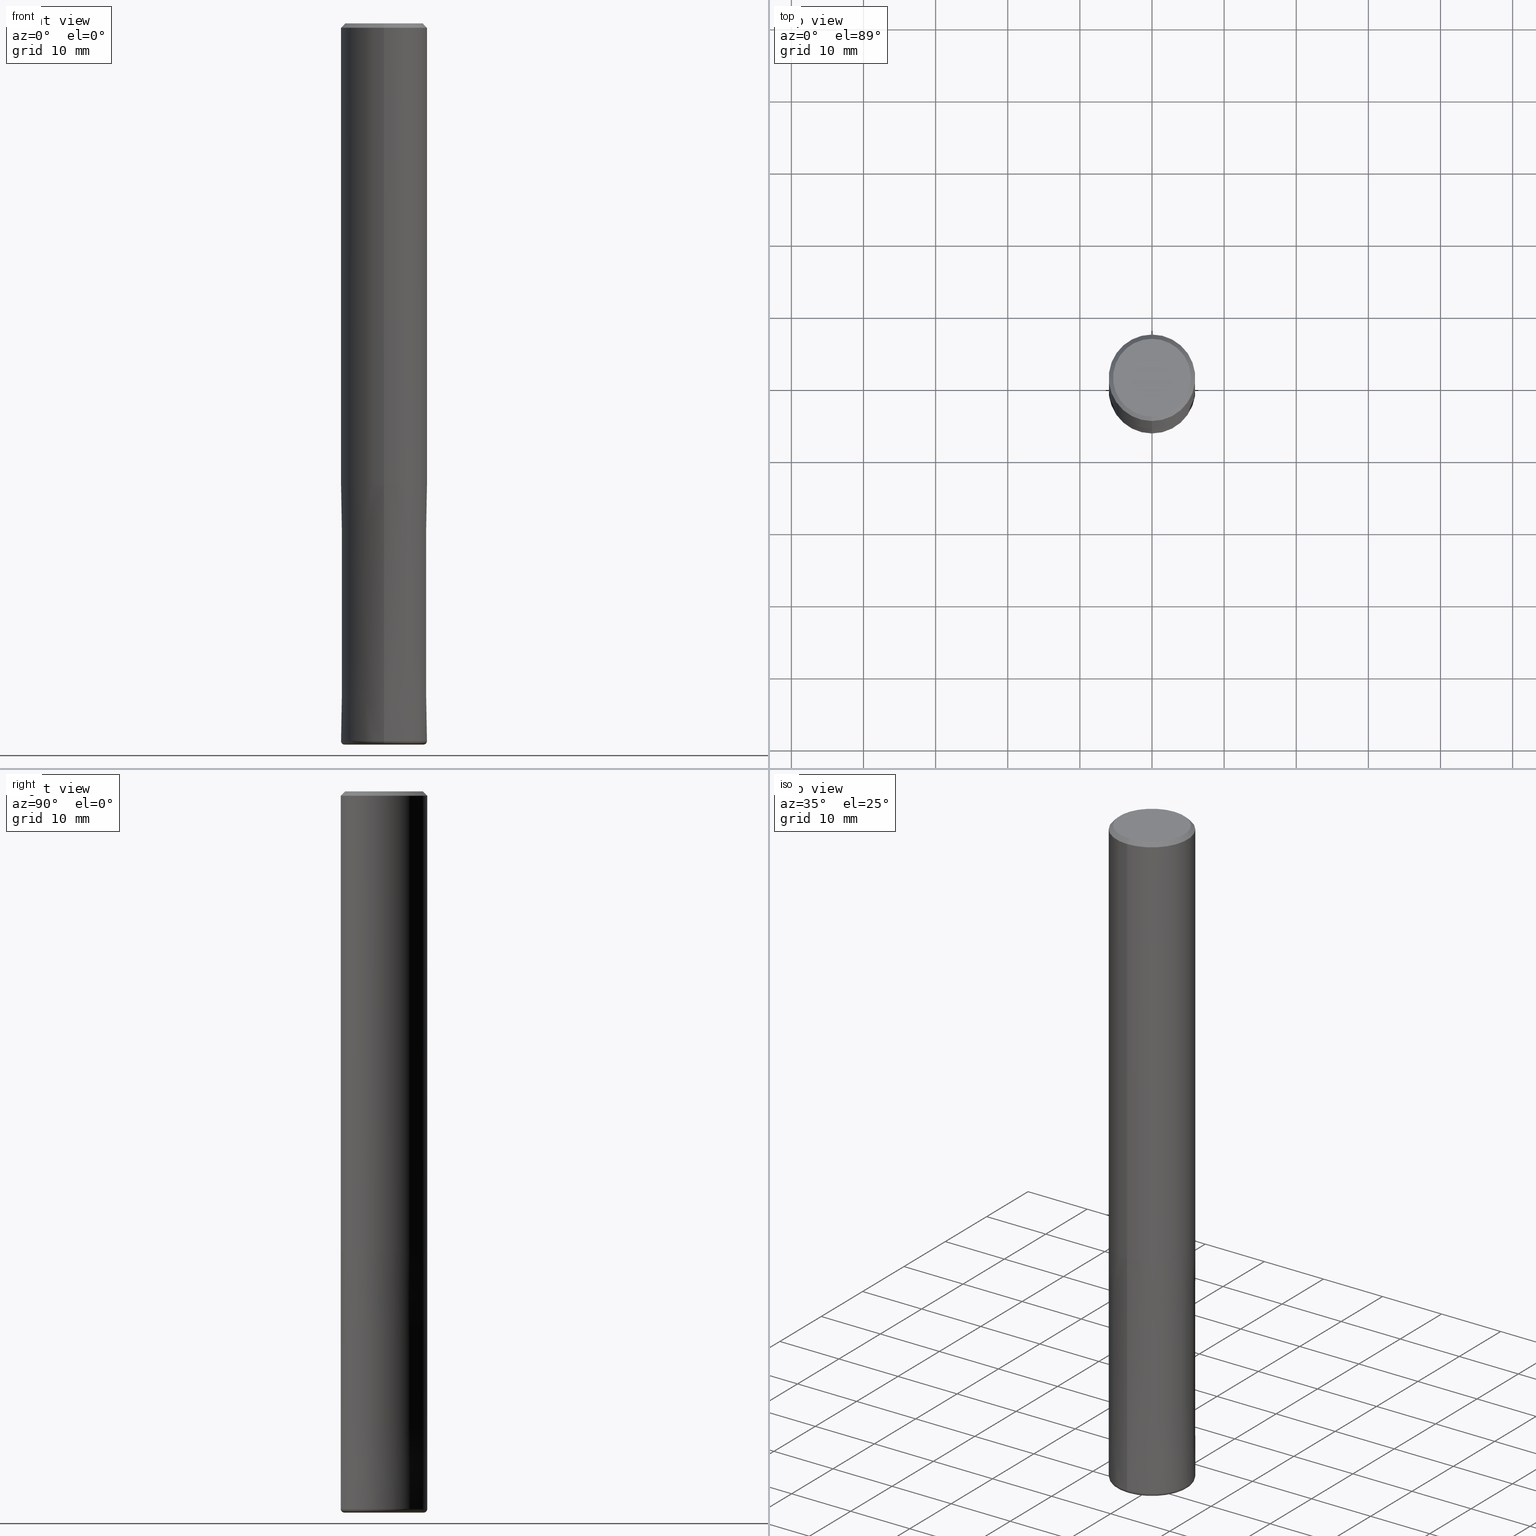
[diagram: canonical four-view strip — front | top / right | iso, engineering-drawing reading convention]
A machine part, canonical four-view strip (front | top / right | iso — engineering-drawing reading convention). The complete STEP part file that produces these views, byte-faithful:
ISO-10303-21;
HEADER;
FILE_DESCRIPTION(('no description'),'unknown implementation level');
FILE_NAME('CXRS5120-05-3600-Huellk.stp','  ',('CIMSOURCE GmbH'),('CADClick - KiM GmbH - www.kimweb.de'),'unknown preprocess','ACIS','unknown authorization');
FILE_SCHEMA(('automotive_design'));
ENDSEC;
DATA;
#1=MECHANICAL_DESIGN_GEOMETRIC_PRESENTATION_REPRESENTATION(' ',(#14,#15,#16,#17,#18,#19,#20,#21,#22,#23,#24,#25,#26,#27,#28,#29,#30,#31,#32,#33,#34,#35,#36,#37,#38,#39,#40,#41,#42,#43,#44,#45,#46,#47,#48,#49,#50,#51,#52,#53,#54,#55,#56,#57,#58,#59,#60,#61,#62,#63,#64,#65,#66,#67,#68,#69,#70,#71,#72,#73,#74,#75,#76,#77,#78,#79,#80,#81,#82,#83,#84),#10);
#2=PRODUCT_DEFINITION_CONTEXT('',#85,'design');
#3=APPLICATION_PROTOCOL_DEFINITION('INTERNATIONAL STANDARD','automotive_design',1994,#85);
#4=PRODUCT_CATEGORY_RELATIONSHIP('NONE','NONE',#86,#87);
#5=SHAPE_DEFINITION_REPRESENTATION(#88,#89);
#6=PRODUCT_DEFINITION_CONTEXT('',#90,'design');
#7=APPLICATION_PROTOCOL_DEFINITION('INTERNATIONAL STANDARD','automotive_design',1994,#90);
#8=PRODUCT_CATEGORY_RELATIONSHIP('NONE','NONE',#91,#92);
#9=SHAPE_DEFINITION_REPRESENTATION(#93,#94);
#10= (GEOMETRIC_REPRESENTATION_CONTEXT(3)GLOBAL_UNCERTAINTY_ASSIGNED_CONTEXT((#97))GLOBAL_UNIT_ASSIGNED_CONTEXT((#99,#100,#101))REPRESENTATION_CONTEXT('NONE','WORKSPACE'));
#14=STYLED_ITEM('',(#103),#104);
#15=STYLED_ITEM('',(#105),#106);
#16=STYLED_ITEM('',(#107),#108);
#17=STYLED_ITEM('',(#109),#110);
#18=STYLED_ITEM('',(#111),#112);
#19=STYLED_ITEM('',(#113),#114);
#20=STYLED_ITEM('',(#115),#116);
#21=STYLED_ITEM('',(#117),#118);
#22=STYLED_ITEM('',(#119),#120);
#23=STYLED_ITEM('',(#121),#122);
#24=STYLED_ITEM('',(#123),#124);
#25=STYLED_ITEM('',(#125),#126);
#26=STYLED_ITEM('',(#127),#128);
#27=STYLED_ITEM('',(#129),#130);
#28=STYLED_ITEM('',(#131),#132);
#29=STYLED_ITEM('',(#133),#134);
#30=STYLED_ITEM('',(#135),#136);
#31=STYLED_ITEM('',(#137),#138);
#32=STYLED_ITEM('',(#139),#140);
#33=STYLED_ITEM('',(#141),#142);
#34=STYLED_ITEM('',(#143),#144);
#35=STYLED_ITEM('',(#145),#146);
#36=STYLED_ITEM('',(#147),#148);
#37=STYLED_ITEM('',(#149),#150);
#38=STYLED_ITEM('',(#151),#152);
#39=STYLED_ITEM('',(#153),#154);
#40=STYLED_ITEM('',(#155),#156);
#41=STYLED_ITEM('',(#157),#158);
#42=STYLED_ITEM('',(#159),#160);
#43=STYLED_ITEM('',(#161),#162);
#44=STYLED_ITEM('',(#163),#164);
#45=STYLED_ITEM('',(#165),#166);
#46=STYLED_ITEM('',(#167),#168);
#47=STYLED_ITEM('',(#169),#170);
#48=STYLED_ITEM('',(#171),#172);
#49=STYLED_ITEM('',(#173),#174);
#50=STYLED_ITEM('',(#175),#176);
#51=STYLED_ITEM('',(#177),#178);
#52=STYLED_ITEM('',(#179),#180);
#53=STYLED_ITEM('',(#181),#182);
#54=STYLED_ITEM('',(#183),#184);
#55=STYLED_ITEM('',(#185),#186);
#56=STYLED_ITEM('',(#187),#188);
#57=STYLED_ITEM('',(#189),#190);
#58=STYLED_ITEM('',(#191),#192);
#59=STYLED_ITEM('',(#193),#194);
#60=STYLED_ITEM('',(#195),#196);
#61=STYLED_ITEM('',(#197),#198);
#62=STYLED_ITEM('',(#199),#200);
#63=STYLED_ITEM('',(#201),#202);
#64=STYLED_ITEM('',(#203),#204);
#65=STYLED_ITEM('',(#205),#206);
#66=STYLED_ITEM('',(#207),#208);
#67=STYLED_ITEM('',(#209),#210);
#68=STYLED_ITEM('',(#211),#212);
#69=STYLED_ITEM('',(#213),#214);
#70=STYLED_ITEM('',(#215),#216);
#71=STYLED_ITEM('',(#217),#218);
#72=STYLED_ITEM('',(#219),#220);
#73=STYLED_ITEM('',(#221),#222);
#74=STYLED_ITEM('',(#223),#224);
#75=STYLED_ITEM('',(#225),#226);
#76=STYLED_ITEM('',(#227),#228);
#77=STYLED_ITEM('',(#229),#230);
#78=STYLED_ITEM('',(#231),#232);
#79=STYLED_ITEM('',(#233),#234);
#80=STYLED_ITEM('',(#235),#236);
#81=STYLED_ITEM('',(#237),#238);
#82=STYLED_ITEM('',(#239),#240);
#83=STYLED_ITEM('',(#241),#242);
#84=STYLED_ITEM('',(#243),#244);
#85=APPLICATION_CONTEXT(' ');
#86=PRODUCT_CATEGORY('part','NONE');
#87=PRODUCT_RELATED_PRODUCT_CATEGORY('detail',' ',(#245));
#88=PRODUCT_DEFINITION_SHAPE('NONE','NONE',#246);
#89=ADVANCED_BREP_SHAPE_REPRESENTATION('1',(#198,#247),#10);
#90=APPLICATION_CONTEXT(' ');
#91=PRODUCT_CATEGORY('part','NONE');
#92=PRODUCT_RELATED_PRODUCT_CATEGORY('detail',' ',(#248));
#93=PRODUCT_DEFINITION_SHAPE('NONE','NONE',#249);
#94=ADVANCED_BREP_SHAPE_REPRESENTATION('2',(#164,#250),#10);
#97=UNCERTAINTY_MEASURE_WITH_UNIT(LENGTH_MEASURE(1.0E-006),#99,'','');
#99= (CONVERSION_BASED_UNIT('MILLIMETRE',#253)LENGTH_UNIT()NAMED_UNIT(#256));
#100= (NAMED_UNIT(#258)PLANE_ANGLE_UNIT()SI_UNIT($,.RADIAN.));
#101= (NAMED_UNIT(#258)SOLID_ANGLE_UNIT()SI_UNIT($,.STERADIAN.));
#103=PRESENTATION_STYLE_ASSIGNMENT((#264));
#104=EDGE_CURVE('',#176,#132,#265,.T.);
#105=PRESENTATION_STYLE_ASSIGNMENT((#266));
#106=VERTEX_POINT('',#267);
#107=PRESENTATION_STYLE_ASSIGNMENT((#268));
#108=VERTEX_POINT('',#269);
#109=PRESENTATION_STYLE_ASSIGNMENT((#270));
#110=ADVANCED_FACE('',(#271),#272,.T.);
#111=PRESENTATION_STYLE_ASSIGNMENT((#273));
#112=EDGE_CURVE('',#188,#184,#274,.T.);
#113=PRESENTATION_STYLE_ASSIGNMENT((#275));
#114=VERTEX_POINT('',#276);
#115=PRESENTATION_STYLE_ASSIGNMENT((#277));
#116=VERTEX_POINT('',#278);
#117=PRESENTATION_STYLE_ASSIGNMENT((#279));
#118=ADVANCED_FACE('',(#280),#281,.T.);
#119=PRESENTATION_STYLE_ASSIGNMENT((#282));
#120=EDGE_CURVE('',#214,#106,#283,.T.);
#121=PRESENTATION_STYLE_ASSIGNMENT((#284));
#122=EDGE_CURVE('',#208,#174,#285,.T.);
#123=PRESENTATION_STYLE_ASSIGNMENT((#286));
#124=EDGE_CURVE('',#206,#180,#287,.T.);
#125=PRESENTATION_STYLE_ASSIGNMENT((#288));
#126=EDGE_CURVE('',#180,#206,#289,.T.);
#127=PRESENTATION_STYLE_ASSIGNMENT((#290));
#128=EDGE_CURVE('',#108,#116,#291,.T.);
#129=PRESENTATION_STYLE_ASSIGNMENT((#292));
#130=EDGE_CURVE('',#150,#154,#293,.T.);
#131=PRESENTATION_STYLE_ASSIGNMENT((#294));
#132=VERTEX_POINT('',#295);
#133=PRESENTATION_STYLE_ASSIGNMENT((#296));
#134=EDGE_CURVE('',#132,#208,#297,.T.);
#135=PRESENTATION_STYLE_ASSIGNMENT((#298));
#136=EDGE_CURVE('',#240,#154,#299,.T.);
#137=PRESENTATION_STYLE_ASSIGNMENT((#300));
#138=EDGE_CURVE('',#106,#214,#301,.T.);
#139=PRESENTATION_STYLE_ASSIGNMENT((#302));
#140=EDGE_CURVE('',#174,#176,#303,.T.);
#141=PRESENTATION_STYLE_ASSIGNMENT((#304));
#142=EDGE_CURVE('',#206,#184,#305,.T.);
#143=PRESENTATION_STYLE_ASSIGNMENT((#306));
#144=ADVANCED_FACE('',(#307),#308,.T.);
#145=PRESENTATION_STYLE_ASSIGNMENT((#309));
#146=EDGE_CURVE('',#154,#240,#310,.T.);
#147=PRESENTATION_STYLE_ASSIGNMENT((#311));
#148=ADVANCED_FACE('',(#312),#313,.F.);
#149=PRESENTATION_STYLE_ASSIGNMENT((#314));
#150=VERTEX_POINT('',#315);
#151=PRESENTATION_STYLE_ASSIGNMENT((#316));
#152=EDGE_CURVE('',#184,#234,#317,.T.);
#153=PRESENTATION_STYLE_ASSIGNMENT((#318));
#154=VERTEX_POINT('',#319);
#155=PRESENTATION_STYLE_ASSIGNMENT((#320));
#156=EDGE_CURVE('',#234,#180,#321,.T.);
#157=PRESENTATION_STYLE_ASSIGNMENT((#322));
#158=EDGE_CURVE('',#214,#116,#323,.T.);
#159=PRESENTATION_STYLE_ASSIGNMENT((#324));
#160=EDGE_CURVE('',#106,#222,#325,.T.);
#161=PRESENTATION_STYLE_ASSIGNMENT((#326));
#162=EDGE_CURVE('',#188,#114,#327,.T.);
#163=PRESENTATION_STYLE_ASSIGNMENT((#328));
#164=MANIFOLD_SOLID_BREP('2',#329);
#165=PRESENTATION_STYLE_ASSIGNMENT((#330));
#166=EDGE_CURVE('',#150,#212,#331,.T.);
#167=PRESENTATION_STYLE_ASSIGNMENT((#332));
#168=EDGE_CURVE('',#174,#208,#333,.T.);
#169=PRESENTATION_STYLE_ASSIGNMENT((#334));
#170=ADVANCED_FACE('',(#335),#336,.T.);
#171=PRESENTATION_STYLE_ASSIGNMENT((#337));
#172=ADVANCED_FACE('',(#338,#339),#340,.T.);
#173=PRESENTATION_STYLE_ASSIGNMENT((#341));
#174=VERTEX_POINT('',#342);
#175=PRESENTATION_STYLE_ASSIGNMENT((#343));
#176=VERTEX_POINT('',#344);
#177=PRESENTATION_STYLE_ASSIGNMENT((#345));
#178=EDGE_CURVE('',#194,#214,#346,.T.);
#179=PRESENTATION_STYLE_ASSIGNMENT((#347));
#180=VERTEX_POINT('',#348);
#181=PRESENTATION_STYLE_ASSIGNMENT((#349));
#182=ADVANCED_FACE('',(#350),#351,.T.);
#183=PRESENTATION_STYLE_ASSIGNMENT((#352));
#184=VERTEX_POINT('',#353);
#185=PRESENTATION_STYLE_ASSIGNMENT((#354));
#186=ADVANCED_FACE('',(#355),#356,.T.);
#187=PRESENTATION_STYLE_ASSIGNMENT((#357));
#188=VERTEX_POINT('',#358);
#189=PRESENTATION_STYLE_ASSIGNMENT((#359));
#190=EDGE_CURVE('',#114,#188,#360,.T.);
#191=PRESENTATION_STYLE_ASSIGNMENT((#361));
#192=EDGE_CURVE('',#108,#106,#362,.T.);
#193=PRESENTATION_STYLE_ASSIGNMENT((#363));
#194=VERTEX_POINT('',#364);
#195=PRESENTATION_STYLE_ASSIGNMENT((#365));
#196=ADVANCED_FACE('',(#366),#367,.T.);
#197=PRESENTATION_STYLE_ASSIGNMENT((#368));
#198=MANIFOLD_SOLID_BREP('1',#369);
#199=PRESENTATION_STYLE_ASSIGNMENT((#370));
#200=EDGE_CURVE('',#212,#150,#371,.T.);
#201=PRESENTATION_STYLE_ASSIGNMENT((#372));
#202=EDGE_CURVE('',#132,#176,#373,.T.);
#203=PRESENTATION_STYLE_ASSIGNMENT((#374));
#204=EDGE_CURVE('',#240,#212,#375,.T.);
#205=PRESENTATION_STYLE_ASSIGNMENT((#376));
#206=VERTEX_POINT('',#377);
#207=PRESENTATION_STYLE_ASSIGNMENT((#378));
#208=VERTEX_POINT('',#379);
#209=PRESENTATION_STYLE_ASSIGNMENT((#380));
#210=ADVANCED_FACE('',(#381),#382,.T.);
#211=PRESENTATION_STYLE_ASSIGNMENT((#383));
#212=VERTEX_POINT('',#384);
#213=PRESENTATION_STYLE_ASSIGNMENT((#385));
#214=VERTEX_POINT('',#386);
#215=PRESENTATION_STYLE_ASSIGNMENT((#387));
#216=ADVANCED_FACE('',(#388),#389,.F.);
#217=PRESENTATION_STYLE_ASSIGNMENT((#390));
#218=EDGE_CURVE('',#222,#194,#391,.T.);
#219=PRESENTATION_STYLE_ASSIGNMENT((#392));
#220=ADVANCED_FACE('',(#393,#394),#395,.T.);
#221=PRESENTATION_STYLE_ASSIGNMENT((#396));
#222=VERTEX_POINT('',#397);
#223=PRESENTATION_STYLE_ASSIGNMENT((#398));
#224=EDGE_CURVE('',#116,#108,#399,.T.);
#225=PRESENTATION_STYLE_ASSIGNMENT((#400));
#226=ADVANCED_FACE('',(#401),#402,.T.);
#227=PRESENTATION_STYLE_ASSIGNMENT((#403));
#228=ADVANCED_FACE('',(#404,#405),#406,.T.);
#229=PRESENTATION_STYLE_ASSIGNMENT((#407));
#230=EDGE_CURVE('',#194,#222,#408,.T.);
#231=PRESENTATION_STYLE_ASSIGNMENT((#409));
#232=ADVANCED_FACE('',(#410),#411,.T.);
#233=PRESENTATION_STYLE_ASSIGNMENT((#412));
#234=VERTEX_POINT('',#413);
#235=PRESENTATION_STYLE_ASSIGNMENT((#414));
#236=EDGE_CURVE('',#234,#114,#415,.T.);
#237=PRESENTATION_STYLE_ASSIGNMENT((#416));
#238=EDGE_CURVE('',#234,#184,#417,.T.);
#239=PRESENTATION_STYLE_ASSIGNMENT((#418));
#240=VERTEX_POINT('',#419);
#241=PRESENTATION_STYLE_ASSIGNMENT((#420));
#242=ADVANCED_FACE('',(#421),#422,.T.);
#243=PRESENTATION_STYLE_ASSIGNMENT((#423));
#244=ADVANCED_FACE('',(#424),#425,.T.);
#245=PRODUCT('1','1','PART-1-DESC',(#426));
#246=PRODUCT_DEFINITION('NONE','NONE',#427,#2);
#247=AXIS2_PLACEMENT_3D('',#428,#429,#430);
#248=PRODUCT('2','2','PART-2-DESC',(#431));
#249=PRODUCT_DEFINITION('NONE','NONE',#432,#6);
#250=AXIS2_PLACEMENT_3D('',#433,#434,#435);
#253=LENGTH_MEASURE_WITH_UNIT(LENGTH_MEASURE(1.0),#436);
#256=DIMENSIONAL_EXPONENTS(1.0,0.0,0.0,0.0,0.0,0.0,0.0);
#258=DIMENSIONAL_EXPONENTS(0.0,0.0,0.0,0.0,0.0,0.0,0.0);
#264=CURVE_STYLE('',#437,POSITIVE_LENGTH_MEASURE(1.0E-006),#438);
#265=CIRCLE('',#439,2.7);
#266=POINT_STYLE(' ',#440,POSITIVE_LENGTH_MEASURE(1.0E-006),#441);
#267=CARTESIAN_POINT('',(0.0,6.0,-0.600000000000001));
#268=POINT_STYLE(' ',#442,POSITIVE_LENGTH_MEASURE(1.0E-006),#443);
#269=CARTESIAN_POINT('',(0.0,5.4,0.0));
#270=SURFACE_STYLE_USAGE(.BOTH.,#444);
#271=FACE_OUTER_BOUND('',#445,.T.);
#272=CONICAL_SURFACE('',#446,5.99995,2.81690140843669E-006);
#273=CURVE_STYLE('',#447,POSITIVE_LENGTH_MEASURE(1.0E-006),#448);
#274=CIRCLE('',#449,0.500000000000007);
#275=POINT_STYLE(' ',#450,POSITIVE_LENGTH_MEASURE(1.0E-006),#451);
#276=CARTESIAN_POINT('',(6.73533494602307E-016,-5.5,-100.0));
#277=POINT_STYLE(' ',#452,POSITIVE_LENGTH_MEASURE(1.0E-006),#453);
#278=CARTESIAN_POINT('',(6.61287431064084E-016,-5.4,0.0));
#279=SURFACE_STYLE_USAGE(.BOTH.,#454);
#280=FACE_OUTER_BOUND('',#455,.T.);
#281=CYLINDRICAL_SURFACE('',#456,2.7);
#282=CURVE_STYLE('',#457,POSITIVE_LENGTH_MEASURE(1.0E-006),#458);
#283=CIRCLE('',#459,6.0);
#284=CURVE_STYLE('',#460,POSITIVE_LENGTH_MEASURE(1.0E-006),#461);
#285=CIRCLE('',#462,2.7);
#286=CURVE_STYLE('',#463,POSITIVE_LENGTH_MEASURE(1.0E-006),#464);
#287=CIRCLE('',#465,5.9999);
#288=CURVE_STYLE('',#466,POSITIVE_LENGTH_MEASURE(1.0E-006),#467);
#289=CIRCLE('',#468,5.9999);
#290=CURVE_STYLE('',#469,POSITIVE_LENGTH_MEASURE(1.0E-006),#470);
#291=CIRCLE('',#471,5.4);
#292=CURVE_STYLE('',#472,POSITIVE_LENGTH_MEASURE(1.0E-006),#473);
#293=LINE('',#474,#475);
#294=POINT_STYLE(' ',#476,POSITIVE_LENGTH_MEASURE(1.0E-006),#477);
#295=CARTESIAN_POINT('',(3.30643715532042E-016,-2.7,-99.76));
#296=CURVE_STYLE('',#478,POSITIVE_LENGTH_MEASURE(1.0E-006),#479);
#297=LINE('',#480,#481);
#298=CURVE_STYLE('',#482,POSITIVE_LENGTH_MEASURE(1.0E-006),#483);
#299=CIRCLE('',#484,2.7);
#300=CURVE_STYLE('',#485,POSITIVE_LENGTH_MEASURE(1.0E-006),#486);
#301=CIRCLE('',#487,6.0);
#302=CURVE_STYLE('',#488,POSITIVE_LENGTH_MEASURE(1.0E-006),#489);
#303=LINE('',#490,#491);
#304=CURVE_STYLE('',#492,POSITIVE_LENGTH_MEASURE(1.0E-006),#493);
#305=LINE('',#494,#495);
#306=SURFACE_STYLE_USAGE(.BOTH.,#496);
#307=FACE_OUTER_BOUND('',#497,.T.);
#308=TOROIDAL_SURFACE('',#498,5.49999999999999,0.500000000000007);
#309=CURVE_STYLE('',#499,POSITIVE_LENGTH_MEASURE(1.0E-006),#500);
#310=CIRCLE('',#501,2.7);
#311=SURFACE_STYLE_USAGE(.BOTH.,#502);
#312=FACE_OUTER_BOUND('',#503,.T.);
#313=CYLINDRICAL_SURFACE('',#504,2.7);
#314=POINT_STYLE(' ',#505,POSITIVE_LENGTH_MEASURE(1.0E-006),#506);
#315=CARTESIAN_POINT('',(3.30643715532042E-016,-2.7,-100.0));
#316=CURVE_STYLE('',#507,POSITIVE_LENGTH_MEASURE(1.0E-006),#508);
#317=CIRCLE('',#509,6.0);
#318=POINT_STYLE(' ',#510,POSITIVE_LENGTH_MEASURE(1.0E-006),#511);
#319=CARTESIAN_POINT('',(3.30643715532042E-016,-2.7,-64.0));
#320=CURVE_STYLE('',#512,POSITIVE_LENGTH_MEASURE(1.0E-006),#513);
#321=LINE('',#514,#515);
#322=CURVE_STYLE('',#516,POSITIVE_LENGTH_MEASURE(1.0E-006),#517);
#323=LINE('',#518,#519);
#324=CURVE_STYLE('',#520,POSITIVE_LENGTH_MEASURE(1.0E-006),#521);
#325=LINE('',#522,#523);
#326=CURVE_STYLE('',#524,POSITIVE_LENGTH_MEASURE(1.0E-006),#525);
#327=CIRCLE('',#526,5.5);
#328=SURFACE_STYLE_USAGE(.BOTH.,#527);
#329=CLOSED_SHELL('',(#216,#242,#110,#172,#210,#144,#228,#148));
#330=CURVE_STYLE('',#528,POSITIVE_LENGTH_MEASURE(1.0E-006),#529);
#331=CIRCLE('',#530,2.7);
#332=CURVE_STYLE('',#531,POSITIVE_LENGTH_MEASURE(1.0E-006),#532);
#333=CIRCLE('',#533,2.7);
#334=SURFACE_STYLE_USAGE(.BOTH.,#534);
#335=FACE_OUTER_BOUND('',#535,.T.);
#336=CYLINDRICAL_SURFACE('',#536,6.0);
#337=SURFACE_STYLE_USAGE(.BOTH.,#537);
#338=FACE_OUTER_BOUND('',#538,.T.);
#339=FACE_BOUND('',#539,.T.);
#340=PLANE('',#540);
#341=POINT_STYLE(' ',#541,POSITIVE_LENGTH_MEASURE(1.0E-006),#542);
#342=CARTESIAN_POINT('',(0.0,2.7,-64.0));
#343=POINT_STYLE(' ',#543,POSITIVE_LENGTH_MEASURE(1.0E-006),#544);
#344=CARTESIAN_POINT('',(0.0,2.7,-99.76));
#345=CURVE_STYLE('',#545,POSITIVE_LENGTH_MEASURE(1.0E-006),#546);
#346=LINE('',#547,#548);
#347=POINT_STYLE(' ',#549,POSITIVE_LENGTH_MEASURE(1.0E-006),#550);
#348=CARTESIAN_POINT('',(7.34751566229888E-016,-5.9999,-64.0));
#349=SURFACE_STYLE_USAGE(.BOTH.,#551);
#350=FACE_OUTER_BOUND('',#552,.T.);
#351=CONICAL_SURFACE('',#553,5.7,0.785398163397447);
#352=POINT_STYLE(' ',#554,POSITIVE_LENGTH_MEASURE(1.0E-006),#555);
#353=CARTESIAN_POINT('',(0.0,6.0,-99.5));
#354=SURFACE_STYLE_USAGE(.BOTH.,#556);
#355=FACE_OUTER_BOUND('',#557,.T.);
#356=CYLINDRICAL_SURFACE('',#558,2.7);
#357=POINT_STYLE(' ',#559,POSITIVE_LENGTH_MEASURE(1.0E-006),#560);
#358=CARTESIAN_POINT('',(0.0,5.5,-100.0));
#359=CURVE_STYLE('',#561,POSITIVE_LENGTH_MEASURE(1.0E-006),#562);
#360=CIRCLE('',#563,5.5);
#361=CURVE_STYLE('',#564,POSITIVE_LENGTH_MEASURE(1.0E-006),#565);
#362=LINE('',#566,#567);
#363=POINT_STYLE(' ',#568,POSITIVE_LENGTH_MEASURE(1.0E-006),#569);
#364=CARTESIAN_POINT('',(7.34763812293426E-016,-6.0,-64.0));
#365=SURFACE_STYLE_USAGE(.BOTH.,#570);
#366=FACE_OUTER_BOUND('',#571,.T.);
#367=PLANE('',#572);
#368=SURFACE_STYLE_USAGE(.BOTH.,#573);
#369=CLOSED_SHELL('',(#118,#170,#182,#220,#226,#232,#244,#186,#196));
#370=CURVE_STYLE('',#574,POSITIVE_LENGTH_MEASURE(1.0E-006),#575);
#371=CIRCLE('',#576,2.7);
#372=CURVE_STYLE('',#577,POSITIVE_LENGTH_MEASURE(1.0E-006),#578);
#373=CIRCLE('',#579,2.7);
#374=CURVE_STYLE('',#580,POSITIVE_LENGTH_MEASURE(1.0E-006),#581);
#375=LINE('',#582,#583);
#376=POINT_STYLE(' ',#584,POSITIVE_LENGTH_MEASURE(1.0E-006),#585);
#377=CARTESIAN_POINT('',(0.0,5.9999,-64.0));
#378=POINT_STYLE(' ',#586,POSITIVE_LENGTH_MEASURE(1.0E-006),#587);
#379=CARTESIAN_POINT('',(3.30643715532042E-016,-2.7,-64.0));
#380=SURFACE_STYLE_USAGE(.BOTH.,#588);
#381=FACE_OUTER_BOUND('',#589,.T.);
#382=CONICAL_SURFACE('',#590,5.99995,2.81690140843669E-006);
#383=POINT_STYLE(' ',#591,POSITIVE_LENGTH_MEASURE(1.0E-006),#592);
#384=CARTESIAN_POINT('',(0.0,2.7,-100.0));
#385=POINT_STYLE(' ',#593,POSITIVE_LENGTH_MEASURE(1.0E-006),#594);
#386=CARTESIAN_POINT('',(7.34763812293426E-016,-6.0,-0.600000000000001));
#387=SURFACE_STYLE_USAGE(.BOTH.,#595);
#388=FACE_OUTER_BOUND('',#596,.T.);
#389=CYLINDRICAL_SURFACE('',#597,2.7);
#390=CURVE_STYLE('',#598,POSITIVE_LENGTH_MEASURE(1.0E-006),#599);
#391=CIRCLE('',#600,6.0);
#392=SURFACE_STYLE_USAGE(.BOTH.,#601);
#393=FACE_OUTER_BOUND('',#602,.T.);
#394=FACE_BOUND('',#603,.T.);
#395=PLANE('',#604);
#396=POINT_STYLE(' ',#605,POSITIVE_LENGTH_MEASURE(1.0E-006),#606);
#397=CARTESIAN_POINT('',(0.0,6.0,-64.0));
#398=CURVE_STYLE('',#607,POSITIVE_LENGTH_MEASURE(1.0E-006),#608);
#399=CIRCLE('',#609,5.4);
#400=SURFACE_STYLE_USAGE(.BOTH.,#610);
#401=FACE_OUTER_BOUND('',#611,.T.);
#402=PLANE('',#612);
#403=SURFACE_STYLE_USAGE(.BOTH.,#613);
#404=FACE_BOUND('',#614,.T.);
#405=FACE_OUTER_BOUND('',#615,.T.);
#406=PLANE('',#616);
#407=CURVE_STYLE('',#617,POSITIVE_LENGTH_MEASURE(1.0E-006),#618);
#408=CIRCLE('',#619,6.0);
#409=SURFACE_STYLE_USAGE(.BOTH.,#620);
#410=FACE_OUTER_BOUND('',#621,.T.);
#411=CONICAL_SURFACE('',#622,5.7,0.785398163397447);
#412=POINT_STYLE(' ',#623,POSITIVE_LENGTH_MEASURE(1.0E-006),#624);
#413=CARTESIAN_POINT('',(7.34763812293426E-016,-6.0,-99.5));
#414=CURVE_STYLE('',#625,POSITIVE_LENGTH_MEASURE(1.0E-006),#626);
#415=CIRCLE('',#627,0.500000000000007);
#416=CURVE_STYLE('',#628,POSITIVE_LENGTH_MEASURE(1.0E-006),#629);
#417=CIRCLE('',#630,6.0);
#418=POINT_STYLE(' ',#631,POSITIVE_LENGTH_MEASURE(1.0E-006),#632);
#419=CARTESIAN_POINT('',(0.0,2.7,-64.0));
#420=SURFACE_STYLE_USAGE(.BOTH.,#633);
#421=FACE_OUTER_BOUND('',#634,.T.);
#422=TOROIDAL_SURFACE('',#635,5.49999999999999,0.500000000000007);
#423=SURFACE_STYLE_USAGE(.BOTH.,#636);
#424=FACE_OUTER_BOUND('',#637,.T.);
#425=CYLINDRICAL_SURFACE('',#638,6.0);
#426=PRODUCT_CONTEXT('',#85,'mechanical');
#427=PRODUCT_DEFINITION_FORMATION_WITH_SPECIFIED_SOURCE(' ','NONE',#245,.NOT_KNOWN.);
#428=CARTESIAN_POINT('',(0.0,0.0,0.0));
#429=DIRECTION('',(0.0,0.0,1.0));
#430=DIRECTION('',(1.0,0.0,0.0));
#431=PRODUCT_CONTEXT('',#90,'mechanical');
#432=PRODUCT_DEFINITION_FORMATION_WITH_SPECIFIED_SOURCE(' ','NONE',#248,.NOT_KNOWN.);
#433=CARTESIAN_POINT('',(0.0,0.0,0.0));
#434=DIRECTION('',(0.0,0.0,1.0));
#435=DIRECTION('',(1.0,0.0,0.0));
#436= (NAMED_UNIT(#256)LENGTH_UNIT()SI_UNIT(.MILLI.,.METRE.));
#437=DRAUGHTING_PRE_DEFINED_CURVE_FONT('continuous');
#438=COLOUR_RGB('',0.498039215803146,0.498039215803146,0.498039215803146);
#439=AXIS2_PLACEMENT_3D('',#640,#641,#642);
#440=PRE_DEFINED_MARKER('');
#441=COLOUR_RGB('',0.498039215803146,0.498039215803146,0.498039215803146);
#442=PRE_DEFINED_MARKER('');
#443=COLOUR_RGB('',0.498039215803146,0.498039215803146,0.498039215803146);
#444=SURFACE_SIDE_STYLE('',(#643));
#445=EDGE_LOOP('',(#644,#645,#646,#647));
#446=AXIS2_PLACEMENT_3D('',#648,#649,#650);
#447=DRAUGHTING_PRE_DEFINED_CURVE_FONT('continuous');
#448=COLOUR_RGB('',0.800000011920929,0.800000011920929,0.800000011920929);
#449=AXIS2_PLACEMENT_3D('',#651,#652,#653);
#450=PRE_DEFINED_MARKER('');
#451=COLOUR_RGB('',0.800000011920929,0.800000011920929,0.800000011920929);
#452=PRE_DEFINED_MARKER('');
#453=COLOUR_RGB('',0.498039215803146,0.498039215803146,0.498039215803146);
#454=SURFACE_SIDE_STYLE('',(#654));
#455=EDGE_LOOP('',(#655,#656,#657,#658));
#456=AXIS2_PLACEMENT_3D('',#659,#660,#661);
#457=DRAUGHTING_PRE_DEFINED_CURVE_FONT('continuous');
#458=COLOUR_RGB('',0.498039215803146,0.498039215803146,0.498039215803146);
#459=AXIS2_PLACEMENT_3D('',#662,#663,#664);
#460=DRAUGHTING_PRE_DEFINED_CURVE_FONT('continuous');
#461=COLOUR_RGB('',0.498039215803146,0.498039215803146,0.498039215803146);
#462=AXIS2_PLACEMENT_3D('',#665,#666,#667);
#463=DRAUGHTING_PRE_DEFINED_CURVE_FONT('continuous');
#464=COLOUR_RGB('',0.800000011920929,0.800000011920929,0.800000011920929);
#465=AXIS2_PLACEMENT_3D('',#668,#669,#670);
#466=DRAUGHTING_PRE_DEFINED_CURVE_FONT('continuous');
#467=COLOUR_RGB('',0.800000011920929,0.800000011920929,0.800000011920929);
#468=AXIS2_PLACEMENT_3D('',#671,#672,#673);
#469=DRAUGHTING_PRE_DEFINED_CURVE_FONT('continuous');
#470=COLOUR_RGB('',0.498039215803146,0.498039215803146,0.498039215803146);
#471=AXIS2_PLACEMENT_3D('',#674,#675,#676);
#472=DRAUGHTING_PRE_DEFINED_CURVE_FONT('continuous');
#473=COLOUR_RGB('',0.800000011920929,0.800000011920929,0.800000011920929);
#474=CARTESIAN_POINT('',(3.30643715532042E-016,-2.7,-82.0));
#475=VECTOR('',#677,1.0);
#476=PRE_DEFINED_MARKER('');
#477=COLOUR_RGB('',0.498039215803146,0.498039215803146,0.498039215803146);
#478=DRAUGHTING_PRE_DEFINED_CURVE_FONT('continuous');
#479=COLOUR_RGB('',0.498039215803146,0.498039215803146,0.498039215803146);
#480=CARTESIAN_POINT('',(3.30643715532042E-016,-2.7,-81.88));
#481=VECTOR('',#678,1.0);
#482=DRAUGHTING_PRE_DEFINED_CURVE_FONT('continuous');
#483=COLOUR_RGB('',0.800000011920929,0.800000011920929,0.800000011920929);
#484=AXIS2_PLACEMENT_3D('',#679,#680,#681);
#485=DRAUGHTING_PRE_DEFINED_CURVE_FONT('continuous');
#486=COLOUR_RGB('',0.498039215803146,0.498039215803146,0.498039215803146);
#487=AXIS2_PLACEMENT_3D('',#682,#683,#684);
#488=DRAUGHTING_PRE_DEFINED_CURVE_FONT('continuous');
#489=COLOUR_RGB('',0.498039215803146,0.498039215803146,0.498039215803146);
#490=CARTESIAN_POINT('',(-3.30643715532042E-016,2.7,-81.88));
#491=VECTOR('',#685,1.0);
#492=DRAUGHTING_PRE_DEFINED_CURVE_FONT('continuous');
#493=COLOUR_RGB('',0.800000011920929,0.800000011920929,0.800000011920929);
#494=CARTESIAN_POINT('',(-7.34757689261658E-016,5.99995,-81.75));
#495=VECTOR('',#686,1.0);
#496=SURFACE_SIDE_STYLE('',(#687));
#497=EDGE_LOOP('',(#688,#689,#690,#691));
#498=AXIS2_PLACEMENT_3D('',#692,#693,#694);
#499=DRAUGHTING_PRE_DEFINED_CURVE_FONT('continuous');
#500=COLOUR_RGB('',0.800000011920929,0.800000011920929,0.800000011920929);
#501=AXIS2_PLACEMENT_3D('',#695,#696,#697);
#502=SURFACE_SIDE_STYLE('',(#698));
#503=EDGE_LOOP('',(#699,#700,#701,#702));
#504=AXIS2_PLACEMENT_3D('',#703,#704,#705);
#505=PRE_DEFINED_MARKER('');
#506=COLOUR_RGB('',0.800000011920929,0.800000011920929,0.800000011920929);
#507=DRAUGHTING_PRE_DEFINED_CURVE_FONT('continuous');
#508=COLOUR_RGB('',0.800000011920929,0.800000011920929,0.800000011920929);
#509=AXIS2_PLACEMENT_3D('',#706,#707,#708);
#510=PRE_DEFINED_MARKER('');
#511=COLOUR_RGB('',0.800000011920929,0.800000011920929,0.800000011920929);
#512=DRAUGHTING_PRE_DEFINED_CURVE_FONT('continuous');
#513=COLOUR_RGB('',0.800000011920929,0.800000011920929,0.800000011920929);
#514=CARTESIAN_POINT('',(7.34757689261657E-016,-5.99995,-81.75));
#515=VECTOR('',#709,1.0);
#516=DRAUGHTING_PRE_DEFINED_CURVE_FONT('continuous');
#517=COLOUR_RGB('',0.498039215803146,0.498039215803146,0.498039215803146);
#518=CARTESIAN_POINT('',(6.98025621678755E-016,-5.7,-0.300000000000004));
#519=VECTOR('',#710,1.0);
#520=DRAUGHTING_PRE_DEFINED_CURVE_FONT('continuous');
#521=COLOUR_RGB('',0.498039215803146,0.498039215803146,0.498039215803146);
#522=CARTESIAN_POINT('',(-7.34763812293426E-016,6.0,-32.3));
#523=VECTOR('',#711,1.0);
#524=DRAUGHTING_PRE_DEFINED_CURVE_FONT('continuous');
#525=COLOUR_RGB('',0.800000011920929,0.800000011920929,0.800000011920929);
#526=AXIS2_PLACEMENT_3D('',#712,#713,#714);
#527=SURFACE_SIDE_STYLE('',(#715));
#528=DRAUGHTING_PRE_DEFINED_CURVE_FONT('continuous');
#529=COLOUR_RGB('',0.800000011920929,0.800000011920929,0.800000011920929);
#530=AXIS2_PLACEMENT_3D('',#716,#717,#718);
#531=DRAUGHTING_PRE_DEFINED_CURVE_FONT('continuous');
#532=COLOUR_RGB('',0.498039215803146,0.498039215803146,0.498039215803146);
#533=AXIS2_PLACEMENT_3D('',#719,#720,#721);
#534=SURFACE_SIDE_STYLE('',(#722));
#535=EDGE_LOOP('',(#723,#724,#725,#726));
#536=AXIS2_PLACEMENT_3D('',#727,#728,#729);
#537=SURFACE_SIDE_STYLE('',(#730));
#538=EDGE_LOOP('',(#731,#732));
#539=EDGE_LOOP('',(#733,#734));
#540=AXIS2_PLACEMENT_3D('',#735,#736,#737);
#541=PRE_DEFINED_MARKER('');
#542=COLOUR_RGB('',0.498039215803146,0.498039215803146,0.498039215803146);
#543=PRE_DEFINED_MARKER('');
#544=COLOUR_RGB('',0.498039215803146,0.498039215803146,0.498039215803146);
#545=DRAUGHTING_PRE_DEFINED_CURVE_FONT('continuous');
#546=COLOUR_RGB('',0.498039215803146,0.498039215803146,0.498039215803146);
#547=CARTESIAN_POINT('',(7.34763812293426E-016,-6.0,-32.3));
#548=VECTOR('',#738,1.0);
#549=PRE_DEFINED_MARKER('');
#550=COLOUR_RGB('',0.800000011920929,0.800000011920929,0.800000011920929);
#551=SURFACE_SIDE_STYLE('',(#739));
#552=EDGE_LOOP('',(#740,#741,#742,#743));
#553=AXIS2_PLACEMENT_3D('',#744,#745,#746);
#554=PRE_DEFINED_MARKER('');
#555=COLOUR_RGB('',0.800000011920929,0.800000011920929,0.800000011920929);
#556=SURFACE_SIDE_STYLE('',(#747));
#557=EDGE_LOOP('',(#748,#749,#750,#751));
#558=AXIS2_PLACEMENT_3D('',#752,#753,#754);
#559=PRE_DEFINED_MARKER('');
#560=COLOUR_RGB('',0.800000011920929,0.800000011920929,0.800000011920929);
#561=DRAUGHTING_PRE_DEFINED_CURVE_FONT('continuous');
#562=COLOUR_RGB('',0.800000011920929,0.800000011920929,0.800000011920929);
#563=AXIS2_PLACEMENT_3D('',#755,#756,#757);
#564=DRAUGHTING_PRE_DEFINED_CURVE_FONT('continuous');
#565=COLOUR_RGB('',0.498039215803146,0.498039215803146,0.498039215803146);
#566=CARTESIAN_POINT('',(-6.98025621678755E-016,5.7,-0.300000000000004));
#567=VECTOR('',#758,1.0);
#568=PRE_DEFINED_MARKER('');
#569=COLOUR_RGB('',0.498039215803146,0.498039215803146,0.498039215803146);
#570=SURFACE_SIDE_STYLE('',(#759));
#571=EDGE_LOOP('',(#760,#761));
#572=AXIS2_PLACEMENT_3D('',#762,#763,#764);
#573=SURFACE_SIDE_STYLE('',(#765));
#574=DRAUGHTING_PRE_DEFINED_CURVE_FONT('continuous');
#575=COLOUR_RGB('',0.800000011920929,0.800000011920929,0.800000011920929);
#576=AXIS2_PLACEMENT_3D('',#766,#767,#768);
#577=DRAUGHTING_PRE_DEFINED_CURVE_FONT('continuous');
#578=COLOUR_RGB('',0.498039215803146,0.498039215803146,0.498039215803146);
#579=AXIS2_PLACEMENT_3D('',#769,#770,#771);
#580=DRAUGHTING_PRE_DEFINED_CURVE_FONT('continuous');
#581=COLOUR_RGB('',0.800000011920929,0.800000011920929,0.800000011920929);
#582=CARTESIAN_POINT('',(-3.30643715532042E-016,2.7,-82.0));
#583=VECTOR('',#772,1.0);
#584=PRE_DEFINED_MARKER('');
#585=COLOUR_RGB('',0.800000011920929,0.800000011920929,0.800000011920929);
#586=PRE_DEFINED_MARKER('');
#587=COLOUR_RGB('',0.498039215803146,0.498039215803146,0.498039215803146);
#588=SURFACE_SIDE_STYLE('',(#773));
#589=EDGE_LOOP('',(#774,#775,#776,#777));
#590=AXIS2_PLACEMENT_3D('',#778,#779,#780);
#591=PRE_DEFINED_MARKER('');
#592=COLOUR_RGB('',0.800000011920929,0.800000011920929,0.800000011920929);
#593=PRE_DEFINED_MARKER('');
#594=COLOUR_RGB('',0.498039215803146,0.498039215803146,0.498039215803146);
#595=SURFACE_SIDE_STYLE('',(#781));
#596=EDGE_LOOP('',(#782,#783,#784,#785));
#597=AXIS2_PLACEMENT_3D('',#786,#787,#788);
#598=DRAUGHTING_PRE_DEFINED_CURVE_FONT('continuous');
#599=COLOUR_RGB('',0.498039215803146,0.498039215803146,0.498039215803146);
#600=AXIS2_PLACEMENT_3D('',#789,#790,#791);
#601=SURFACE_SIDE_STYLE('',(#792));
#602=EDGE_LOOP('',(#793,#794));
#603=EDGE_LOOP('',(#795,#796));
#604=AXIS2_PLACEMENT_3D('',#797,#798,#799);
#605=PRE_DEFINED_MARKER('');
#606=COLOUR_RGB('',0.498039215803146,0.498039215803146,0.498039215803146);
#607=DRAUGHTING_PRE_DEFINED_CURVE_FONT('continuous');
#608=COLOUR_RGB('',0.498039215803146,0.498039215803146,0.498039215803146);
#609=AXIS2_PLACEMENT_3D('',#800,#801,#802);
#610=SURFACE_SIDE_STYLE('',(#803));
#611=EDGE_LOOP('',(#804,#805));
#612=AXIS2_PLACEMENT_3D('',#806,#807,#808);
#613=SURFACE_SIDE_STYLE('',(#809));
#614=EDGE_LOOP('',(#810,#811));
#615=EDGE_LOOP('',(#812,#813));
#616=AXIS2_PLACEMENT_3D('',#814,#815,#816);
#617=DRAUGHTING_PRE_DEFINED_CURVE_FONT('continuous');
#618=COLOUR_RGB('',0.498039215803146,0.498039215803146,0.498039215803146);
#619=AXIS2_PLACEMENT_3D('',#817,#818,#819);
#620=SURFACE_SIDE_STYLE('',(#820));
#621=EDGE_LOOP('',(#821,#822,#823,#824));
#622=AXIS2_PLACEMENT_3D('',#825,#826,#827);
#623=PRE_DEFINED_MARKER('');
#624=COLOUR_RGB('',0.800000011920929,0.800000011920929,0.800000011920929);
#625=DRAUGHTING_PRE_DEFINED_CURVE_FONT('continuous');
#626=COLOUR_RGB('',0.800000011920929,0.800000011920929,0.800000011920929);
#627=AXIS2_PLACEMENT_3D('',#828,#829,#830);
#628=DRAUGHTING_PRE_DEFINED_CURVE_FONT('continuous');
#629=COLOUR_RGB('',0.800000011920929,0.800000011920929,0.800000011920929);
#630=AXIS2_PLACEMENT_3D('',#831,#832,#833);
#631=PRE_DEFINED_MARKER('');
#632=COLOUR_RGB('',0.800000011920929,0.800000011920929,0.800000011920929);
#633=SURFACE_SIDE_STYLE('',(#834));
#634=EDGE_LOOP('',(#835,#836,#837,#838));
#635=AXIS2_PLACEMENT_3D('',#839,#840,#841);
#636=SURFACE_SIDE_STYLE('',(#842));
#637=EDGE_LOOP('',(#843,#844,#845,#846));
#638=AXIS2_PLACEMENT_3D('',#847,#848,#849);
#640=CARTESIAN_POINT('',(0.0,0.0,-99.76));
#641=DIRECTION('',(0.0,0.0,-1.0));
#642=DIRECTION('',(0.0,1.0,0.0));
#643=SURFACE_STYLE_FILL_AREA(#850);
#644=ORIENTED_EDGE('',*,*,#142,.F.);
#645=ORIENTED_EDGE('',*,*,#124,.T.);
#646=ORIENTED_EDGE('',*,*,#156,.F.);
#647=ORIENTED_EDGE('',*,*,#152,.F.);
#648=CARTESIAN_POINT('',(0.0,0.0,-81.75));
#649=DIRECTION('',(0.0,-0.0,-1.0));
#650=DIRECTION('',(0.0,1.0,0.0));
#651=CARTESIAN_POINT('',(-6.73533494602307E-016,5.49999999999999,-99.5));
#652=DIRECTION('',(1.0,1.22460635382238E-016,0.0));
#653=DIRECTION('',(-1.22460635382238E-016,1.0,0.0));
#654=SURFACE_STYLE_FILL_AREA(#851);
#655=ORIENTED_EDGE('',*,*,#140,.F.);
#656=ORIENTED_EDGE('',*,*,#168,.T.);
#657=ORIENTED_EDGE('',*,*,#134,.F.);
#658=ORIENTED_EDGE('',*,*,#104,.F.);
#659=CARTESIAN_POINT('',(0.0,0.0,-81.88));
#660=DIRECTION('',(-0.0,-0.0,1.0));
#661=DIRECTION('',(0.0,1.0,0.0));
#662=CARTESIAN_POINT('',(0.0,0.0,-0.600000000000001));
#663=DIRECTION('',(0.0,0.0,-1.0));
#664=DIRECTION('',(0.0,1.0,0.0));
#665=CARTESIAN_POINT('',(0.0,0.0,-64.0));
#666=DIRECTION('',(0.0,0.0,-1.0));
#667=DIRECTION('',(0.0,1.0,0.0));
#668=CARTESIAN_POINT('',(0.0,0.0,-64.0));
#669=DIRECTION('',(0.0,0.0,-1.0));
#670=DIRECTION('',(0.0,1.0,0.0));
#671=CARTESIAN_POINT('',(0.0,0.0,-64.0));
#672=DIRECTION('',(0.0,0.0,-1.0));
#673=DIRECTION('',(0.0,1.0,0.0));
#674=CARTESIAN_POINT('',(0.0,0.0,0.0));
#675=DIRECTION('',(0.0,0.0,-1.0));
#676=DIRECTION('',(0.0,1.0,0.0));
#677=DIRECTION('',(0.0,-0.0,1.0));
#678=DIRECTION('',(-0.0,-0.0,1.0));
#679=CARTESIAN_POINT('',(0.0,0.0,-64.0));
#680=DIRECTION('',(0.0,0.0,-1.0));
#681=DIRECTION('',(0.0,1.0,0.0));
#682=CARTESIAN_POINT('',(0.0,0.0,-0.600000000000001));
#683=DIRECTION('',(0.0,0.0,-1.0));
#684=DIRECTION('',(0.0,1.0,0.0));
#685=DIRECTION('',(0.0,0.0,-1.0));
#686=DIRECTION('',(-3.44959536285821E-022,2.81690140843296E-006,-0.999999999996033));
#687=SURFACE_STYLE_FILL_AREA(#852);
#688=ORIENTED_EDGE('',*,*,#236,.T.);
#689=ORIENTED_EDGE('',*,*,#162,.F.);
#690=ORIENTED_EDGE('',*,*,#112,.T.);
#691=ORIENTED_EDGE('',*,*,#152,.T.);
#692=CARTESIAN_POINT('',(0.0,0.0,-99.5));
#693=DIRECTION('',(0.0,0.0,-1.0));
#694=DIRECTION('',(0.0,-1.0,0.0));
#695=CARTESIAN_POINT('',(0.0,0.0,-64.0));
#696=DIRECTION('',(0.0,0.0,-1.0));
#697=DIRECTION('',(0.0,1.0,0.0));
#698=SURFACE_STYLE_FILL_AREA(#853);
#699=ORIENTED_EDGE('',*,*,#204,.T.);
#700=ORIENTED_EDGE('',*,*,#200,.T.);
#701=ORIENTED_EDGE('',*,*,#130,.T.);
#702=ORIENTED_EDGE('',*,*,#136,.F.);
#703=CARTESIAN_POINT('',(0.0,0.0,-82.0));
#704=DIRECTION('',(-0.0,-0.0,1.0));
#705=DIRECTION('',(0.0,1.0,0.0));
#706=CARTESIAN_POINT('',(0.0,0.0,-99.5));
#707=DIRECTION('',(0.0,0.0,-1.0));
#708=DIRECTION('',(0.0,1.0,0.0));
#709=DIRECTION('',(-3.44959536285821E-022,2.81690140843296E-006,0.999999999996033));
#710=DIRECTION('',(-8.65927457071934E-017,0.707106781186546,0.707106781186549));
#711=DIRECTION('',(0.0,0.0,-1.0));
#712=CARTESIAN_POINT('',(0.0,0.0,-100.0));
#713=DIRECTION('',(0.0,0.0,-1.0));
#714=DIRECTION('',(0.0,1.0,0.0));
#715=SURFACE_STYLE_FILL_AREA(#854);
#716=CARTESIAN_POINT('',(0.0,0.0,-100.0));
#717=DIRECTION('',(0.0,0.0,-1.0));
#718=DIRECTION('',(0.0,1.0,0.0));
#719=CARTESIAN_POINT('',(0.0,0.0,-64.0));
#720=DIRECTION('',(0.0,0.0,-1.0));
#721=DIRECTION('',(0.0,1.0,0.0));
#722=SURFACE_STYLE_FILL_AREA(#855);
#723=ORIENTED_EDGE('',*,*,#160,.F.);
#724=ORIENTED_EDGE('',*,*,#138,.T.);
#725=ORIENTED_EDGE('',*,*,#178,.F.);
#726=ORIENTED_EDGE('',*,*,#218,.F.);
#727=CARTESIAN_POINT('',(0.0,0.0,-32.3));
#728=DIRECTION('',(-0.0,-0.0,1.0));
#729=DIRECTION('',(0.0,1.0,0.0));
#730=SURFACE_STYLE_FILL_AREA(#856);
#731=ORIENTED_EDGE('',*,*,#124,.F.);
#732=ORIENTED_EDGE('',*,*,#126,.F.);
#733=ORIENTED_EDGE('',*,*,#136,.T.);
#734=ORIENTED_EDGE('',*,*,#146,.T.);
#735=CARTESIAN_POINT('',(0.0,4.34995,-64.0));
#736=DIRECTION('',(-0.0,0.0,1.0));
#737=DIRECTION('',(0.0,-1.0,0.0));
#738=DIRECTION('',(-0.0,-0.0,1.0));
#739=SURFACE_STYLE_FILL_AREA(#857);
#740=ORIENTED_EDGE('',*,*,#192,.F.);
#741=ORIENTED_EDGE('',*,*,#128,.T.);
#742=ORIENTED_EDGE('',*,*,#158,.F.);
#743=ORIENTED_EDGE('',*,*,#138,.F.);
#744=CARTESIAN_POINT('',(0.0,0.0,-0.300000000000004));
#745=DIRECTION('',(0.0,-0.0,-1.0));
#746=DIRECTION('',(0.0,1.0,0.0));
#747=SURFACE_STYLE_FILL_AREA(#858);
#748=ORIENTED_EDGE('',*,*,#140,.T.);
#749=ORIENTED_EDGE('',*,*,#202,.F.);
#750=ORIENTED_EDGE('',*,*,#134,.T.);
#751=ORIENTED_EDGE('',*,*,#122,.T.);
#752=CARTESIAN_POINT('',(0.0,0.0,-81.88));
#753=DIRECTION('',(-0.0,-0.0,1.0));
#754=DIRECTION('',(0.0,1.0,0.0));
#755=CARTESIAN_POINT('',(0.0,0.0,-100.0));
#756=DIRECTION('',(0.0,0.0,-1.0));
#757=DIRECTION('',(0.0,1.0,0.0));
#758=DIRECTION('',(-8.65927457071934E-017,0.707106781186546,-0.707106781186549));
#759=SURFACE_STYLE_FILL_AREA(#859);
#760=ORIENTED_EDGE('',*,*,#104,.T.);
#761=ORIENTED_EDGE('',*,*,#202,.T.);
#762=CARTESIAN_POINT('',(0.0,1.35,-99.76));
#763=DIRECTION('',(0.0,0.0,-1.0));
#764=DIRECTION('',(0.0,1.0,0.0));
#765=SURFACE_STYLE_FILL_AREA(#860);
#766=CARTESIAN_POINT('',(0.0,0.0,-100.0));
#767=DIRECTION('',(0.0,0.0,-1.0));
#768=DIRECTION('',(0.0,1.0,0.0));
#769=CARTESIAN_POINT('',(0.0,0.0,-99.76));
#770=DIRECTION('',(0.0,0.0,-1.0));
#771=DIRECTION('',(0.0,1.0,0.0));
#772=DIRECTION('',(0.0,-0.0,-1.0));
#773=SURFACE_STYLE_FILL_AREA(#861);
#774=ORIENTED_EDGE('',*,*,#142,.T.);
#775=ORIENTED_EDGE('',*,*,#238,.F.);
#776=ORIENTED_EDGE('',*,*,#156,.T.);
#777=ORIENTED_EDGE('',*,*,#126,.T.);
#778=CARTESIAN_POINT('',(0.0,0.0,-81.75));
#779=DIRECTION('',(0.0,-0.0,-1.0));
#780=DIRECTION('',(0.0,1.0,0.0));
#781=SURFACE_STYLE_FILL_AREA(#862);
#782=ORIENTED_EDGE('',*,*,#204,.F.);
#783=ORIENTED_EDGE('',*,*,#146,.F.);
#784=ORIENTED_EDGE('',*,*,#130,.F.);
#785=ORIENTED_EDGE('',*,*,#166,.T.);
#786=CARTESIAN_POINT('',(0.0,0.0,-82.0));
#787=DIRECTION('',(-0.0,-0.0,1.0));
#788=DIRECTION('',(0.0,1.0,0.0));
#789=CARTESIAN_POINT('',(0.0,0.0,-64.0));
#790=DIRECTION('',(0.0,0.0,-1.0));
#791=DIRECTION('',(0.0,1.0,0.0));
#792=SURFACE_STYLE_FILL_AREA(#863);
#793=ORIENTED_EDGE('',*,*,#218,.T.);
#794=ORIENTED_EDGE('',*,*,#230,.T.);
#795=ORIENTED_EDGE('',*,*,#168,.F.);
#796=ORIENTED_EDGE('',*,*,#122,.F.);
#797=CARTESIAN_POINT('',(0.0,3.0,-64.0));
#798=DIRECTION('',(0.0,0.0,-1.0));
#799=DIRECTION('',(0.0,1.0,0.0));
#800=CARTESIAN_POINT('',(0.0,0.0,0.0));
#801=DIRECTION('',(0.0,0.0,-1.0));
#802=DIRECTION('',(0.0,1.0,0.0));
#803=SURFACE_STYLE_FILL_AREA(#864);
#804=ORIENTED_EDGE('',*,*,#128,.F.);
#805=ORIENTED_EDGE('',*,*,#224,.F.);
#806=CARTESIAN_POINT('',(0.0,2.7,0.0));
#807=DIRECTION('',(-0.0,0.0,1.0));
#808=DIRECTION('',(0.0,-1.0,0.0));
#809=SURFACE_STYLE_FILL_AREA(#865);
#810=ORIENTED_EDGE('',*,*,#200,.F.);
#811=ORIENTED_EDGE('',*,*,#166,.F.);
#812=ORIENTED_EDGE('',*,*,#162,.T.);
#813=ORIENTED_EDGE('',*,*,#190,.T.);
#814=CARTESIAN_POINT('',(0.0,4.1,-100.0));
#815=DIRECTION('',(0.0,0.0,-1.0));
#816=DIRECTION('',(0.0,1.0,0.0));
#817=CARTESIAN_POINT('',(0.0,0.0,-64.0));
#818=DIRECTION('',(0.0,0.0,-1.0));
#819=DIRECTION('',(0.0,1.0,0.0));
#820=SURFACE_STYLE_FILL_AREA(#866);
#821=ORIENTED_EDGE('',*,*,#192,.T.);
#822=ORIENTED_EDGE('',*,*,#120,.F.);
#823=ORIENTED_EDGE('',*,*,#158,.T.);
#824=ORIENTED_EDGE('',*,*,#224,.T.);
#825=CARTESIAN_POINT('',(0.0,0.0,-0.300000000000004));
#826=DIRECTION('',(0.0,-0.0,-1.0));
#827=DIRECTION('',(0.0,1.0,0.0));
#828=CARTESIAN_POINT('',(6.73533494602307E-016,-5.49999999999999,-99.5));
#829=DIRECTION('',(1.0,1.22460635382238E-016,0.0));
#830=DIRECTION('',(1.22460635382238E-016,-1.0,-0.0));
#831=CARTESIAN_POINT('',(0.0,0.0,-99.5));
#832=DIRECTION('',(0.0,0.0,-1.0));
#833=DIRECTION('',(0.0,1.0,0.0));
#834=SURFACE_STYLE_FILL_AREA(#867);
#835=ORIENTED_EDGE('',*,*,#236,.F.);
#836=ORIENTED_EDGE('',*,*,#238,.T.);
#837=ORIENTED_EDGE('',*,*,#112,.F.);
#838=ORIENTED_EDGE('',*,*,#190,.F.);
#839=CARTESIAN_POINT('',(0.0,0.0,-99.5));
#840=DIRECTION('',(0.0,0.0,-1.0));
#841=DIRECTION('',(0.0,-1.0,0.0));
#842=SURFACE_STYLE_FILL_AREA(#868);
#843=ORIENTED_EDGE('',*,*,#160,.T.);
#844=ORIENTED_EDGE('',*,*,#230,.F.);
#845=ORIENTED_EDGE('',*,*,#178,.T.);
#846=ORIENTED_EDGE('',*,*,#120,.T.);
#847=CARTESIAN_POINT('',(0.0,0.0,-32.3));
#848=DIRECTION('',(-0.0,-0.0,1.0));
#849=DIRECTION('',(0.0,1.0,0.0));
#850=FILL_AREA_STYLE('',(#869));
#851=FILL_AREA_STYLE('',(#870));
#852=FILL_AREA_STYLE('',(#871));
#853=FILL_AREA_STYLE('',(#872));
#854=FILL_AREA_STYLE('',(#873));
#855=FILL_AREA_STYLE('',(#874));
#856=FILL_AREA_STYLE('',(#875));
#857=FILL_AREA_STYLE('',(#876));
#858=FILL_AREA_STYLE('',(#877));
#859=FILL_AREA_STYLE('',(#878));
#860=FILL_AREA_STYLE('',(#879));
#861=FILL_AREA_STYLE('',(#880));
#862=FILL_AREA_STYLE('',(#881));
#863=FILL_AREA_STYLE('',(#882));
#864=FILL_AREA_STYLE('',(#883));
#865=FILL_AREA_STYLE('',(#884));
#866=FILL_AREA_STYLE('',(#885));
#867=FILL_AREA_STYLE('',(#886));
#868=FILL_AREA_STYLE('',(#887));
#869=FILL_AREA_STYLE_COLOUR('',#888);
#870=FILL_AREA_STYLE_COLOUR('',#889);
#871=FILL_AREA_STYLE_COLOUR('',#890);
#872=FILL_AREA_STYLE_COLOUR('',#891);
#873=FILL_AREA_STYLE_COLOUR('',#892);
#874=FILL_AREA_STYLE_COLOUR('',#893);
#875=FILL_AREA_STYLE_COLOUR('',#894);
#876=FILL_AREA_STYLE_COLOUR('',#895);
#877=FILL_AREA_STYLE_COLOUR('',#896);
#878=FILL_AREA_STYLE_COLOUR('',#897);
#879=FILL_AREA_STYLE_COLOUR('',#898);
#880=FILL_AREA_STYLE_COLOUR('',#899);
#881=FILL_AREA_STYLE_COLOUR('',#900);
#882=FILL_AREA_STYLE_COLOUR('',#901);
#883=FILL_AREA_STYLE_COLOUR('',#902);
#884=FILL_AREA_STYLE_COLOUR('',#903);
#885=FILL_AREA_STYLE_COLOUR('',#904);
#886=FILL_AREA_STYLE_COLOUR('',#905);
#887=FILL_AREA_STYLE_COLOUR('',#906);
#888=COLOUR_RGB('',0.800000011920929,0.800000011920929,0.800000011920929);
#889=COLOUR_RGB('',0.498039215803146,0.498039215803146,0.498039215803146);
#890=COLOUR_RGB('',0.800000011920929,0.800000011920929,0.800000011920929);
#891=COLOUR_RGB('',0.800000011920929,0.800000011920929,0.800000011920929);
#892=COLOUR_RGB('',0.800000011920929,0.800000011920929,0.800000011920929);
#893=COLOUR_RGB('',0.498039215803146,0.498039215803146,0.498039215803146);
#894=COLOUR_RGB('',0.800000011920929,0.800000011920929,0.800000011920929);
#895=COLOUR_RGB('',0.498039215803146,0.498039215803146,0.498039215803146);
#896=COLOUR_RGB('',0.498039215803146,0.498039215803146,0.498039215803146);
#897=COLOUR_RGB('',0.498039215803146,0.498039215803146,0.498039215803146);
#898=COLOUR_RGB('',0.498039215803146,0.498039215803146,0.498039215803146);
#899=COLOUR_RGB('',0.800000011920929,0.800000011920929,0.800000011920929);
#900=COLOUR_RGB('',0.800000011920929,0.800000011920929,0.800000011920929);
#901=COLOUR_RGB('',0.498039215803146,0.498039215803146,0.498039215803146);
#902=COLOUR_RGB('',0.498039215803146,0.498039215803146,0.498039215803146);
#903=COLOUR_RGB('',0.800000011920929,0.800000011920929,0.800000011920929);
#904=COLOUR_RGB('',0.498039215803146,0.498039215803146,0.498039215803146);
#905=COLOUR_RGB('',0.800000011920929,0.800000011920929,0.800000011920929);
#906=COLOUR_RGB('',0.498039215803146,0.498039215803146,0.498039215803146);
#907=AXIS2_PLACEMENT_3D('PCS',#908,#909,#910);
#908=CARTESIAN_POINT('',(0.0,0.0,0.0));
#909=DIRECTION('',(0.0,0.0,1.0));
#910=DIRECTION('',(1.0,0.0,0.0));
#911=AXIS2_PLACEMENT_3D('CIP',#912,#913,#914);
#912=CARTESIAN_POINT('',(0.0,0.0,-100.0));
#913=DIRECTION('',(0.0,0.0,1.0));
#914=DIRECTION('',(1.0,0.0,0.0));
#915=AXIS2_PLACEMENT_3D('CRP',#916,#917,#918);
#916=CARTESIAN_POINT('',(-6.0,0.0,-100.0));
#917=DIRECTION('',(0.0,0.0,1.0));
#918=DIRECTION('',(1.0,0.0,0.0));
#919=AXIS2_PLACEMENT_3D('MCS',#920,#921,#922);
#920=CARTESIAN_POINT('',(0.0,0.0,-64.0));
#921=DIRECTION('',(0.0,0.0,1.0));
#922=DIRECTION('',(1.0,0.0,0.0));
#923=CONSTRUCTIVE_GEOMETRY_REPRESENTATION_RELATIONSHIP('coordinate systems',$,#89,#924);
#924=CONSTRUCTIVE_GEOMETRY_REPRESENTATION('coordinate systems',(#907,#911,#915,#919),#10);
ENDSEC;
END-ISO-10303-21;
